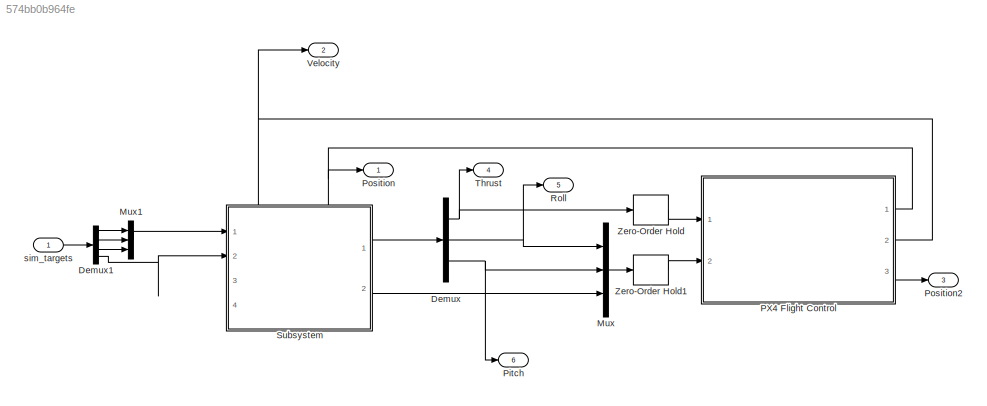
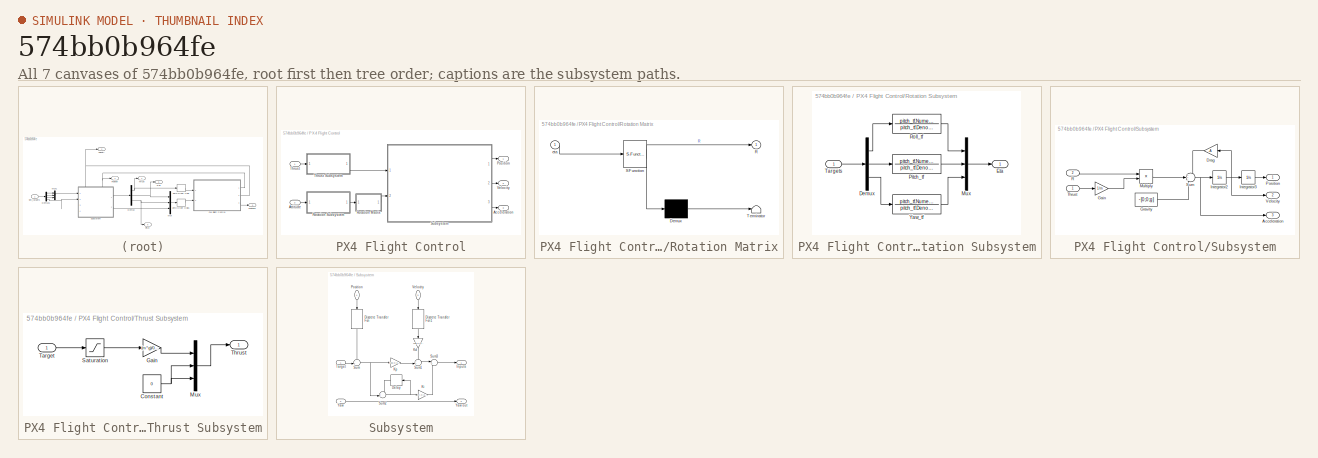
[diagram: thumbnail index - all 7 canvases of the model, root first then tree order]
MODEL slx_574bb0b964fe
KIND model
CONFIG AbsTol = auto
CONFIG EnableMultiTasking = off
CONFIG FixedStep = step_size
CONFIG MaxStep = auto
CONFIG MinStep = auto
CONFIG RelTol = 1e-3
CONFIG SampleTimeConstraint = Unconstrained
CONFIG Solver = FixedStepAuto
CONFIG SolverName = FixedStepAuto
CONFIG StartTime = 0.0
CONFIG StopTime = 10.0
BLOCK [Demux] Demux
  Outputs = 3
  Ports = [1, 3]
BLOCK [Demux] Demux1
  Ports = [1, 4]
BLOCK [Mux] Mux
  DisplayOption = bar
  Inputs = 3
  Ports = [3, 1]
BLOCK [Mux] Mux1
  DisplayOption = bar
  Inputs = 3
  Ports = [3, 1]
BLOCK [SubSystem] PX4 Flight Control
  Ports = [2, 3]
  RequestExecContextInheritance = off
BLOCK [Outport] PX4 Flight Control/Acceleration
  Port = 3
BLOCK [Inport] PX4 Flight Control/Attitude
  Port = 2
BLOCK [Outport] PX4 Flight Control/Position
BLOCK [SubSystem] PX4 Flight Control/Rotation Matrix
  ErrorFcn = Stateflow.Translate.translate
  PermitHierarchicalResolution = ExplicitOnly
  Ports = [1, 1]
  RequestExecContextInheritance = off
  SFBlockType = MATLAB Function
  TreatAsAtomicUnit = on
BLOCK [Demux] PX4 Flight Control/Rotation Matrix/ Demux 
  Outputs = 1
  Ports = [1, 1]
BLOCK [S-Function] PX4 Flight Control/Rotation Matrix/ SFunction 
  EnableBusSupport = on
  FunctionName = sf_sfun
  PortCounts = [1 2]
  Ports = [1, 2]
  SFcnIsStateOwnerBlock = off
  SFunctionDeploymentMode = off
  Tag = Stateflow S-Function 1
BLOCK [Terminator] PX4 Flight Control/Rotation Matrix/ Terminator 
BLOCK [Outport] PX4 Flight Control/Rotation Matrix/R
  VectorParamsAs1DForOutWhenUnconnected = off
BLOCK [Inport] PX4 Flight Control/Rotation Matrix/eta
BLOCK [SubSystem] PX4 Flight Control/Rotation Subsystem
  Ports = [1, 1]
  RequestExecContextInheritance = off
BLOCK [Demux] PX4 Flight Control/Rotation Subsystem/Demux
  Outputs = 3
  Ports = [1, 3]
BLOCK [Outport] PX4 Flight Control/Rotation Subsystem/Eta
BLOCK [Mux] PX4 Flight Control/Rotation Subsystem/Mux
  DisplayOption = bar
  Inputs = 3
  Ports = [3, 1]
BLOCK [TransferFcn] PX4 Flight Control/Rotation Subsystem/Pitch_tf
  Denominator = pitch_tf.Denominator{1}
  Numerator = pitch_tf.Numerator{1}
BLOCK [TransferFcn] PX4 Flight Control/Rotation Subsystem/Roll_tf
  Denominator = pitch_tf.Denominator{1}
  Numerator = pitch_tf.Numerator{1}
BLOCK [Inport] PX4 Flight Control/Rotation Subsystem/Targets
BLOCK [TransferFcn] PX4 Flight Control/Rotation Subsystem/Yaw_tf
  Denominator = pitch_tf.Denominator{1}
  Numerator = pitch_tf.Numerator{1}
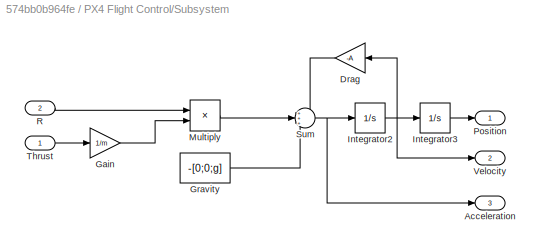
BLOCK [SubSystem] PX4 Flight Control/Subsystem
  Ports = [2, 3]
  RequestExecContextInheritance = off
BLOCK [Outport] PX4 Flight Control/Subsystem/Acceleration
  Port = 3
  VectorParamsAs1DForOutWhenUnconnected = off
BLOCK [Gain] PX4 Flight Control/Subsystem/Drag
  Gain = -A
  Multiplication = Matrix(K*u)
  NameLocation = top
BLOCK [Gain] PX4 Flight Control/Subsystem/Gain
  Gain = 1/m
  Multiplication = Matrix(K*u)
BLOCK [Constant] PX4 Flight Control/Subsystem/Gravity
  Value = -[0;0;g]
BLOCK [Integrator] PX4 Flight Control/Subsystem/Integrator2
  Ports = [1, 1]
BLOCK [Integrator] PX4 Flight Control/Subsystem/Integrator3
  Ports = [1, 1]
BLOCK [Product] PX4 Flight Control/Subsystem/Multiply
  Inputs = **
  Multiplication = Matrix(*)
  Ports = [2, 1]
BLOCK [Outport] PX4 Flight Control/Subsystem/Position
  VectorParamsAs1DForOutWhenUnconnected = off
BLOCK [Inport] PX4 Flight Control/Subsystem/R
  Port = 2
BLOCK [Sum] PX4 Flight Control/Subsystem/Sum
  Inputs = +++
  Ports = [3, 1]
BLOCK [Inport] PX4 Flight Control/Subsystem/Thrust
BLOCK [Outport] PX4 Flight Control/Subsystem/Velocity
  Port = 2
  VectorParamsAs1DForOutWhenUnconnected = off
BLOCK [Inport] PX4 Flight Control/Thrust
BLOCK [SubSystem] PX4 Flight Control/Thrust Subsystem
  Ports = [1, 1]
  RequestExecContextInheritance = off
BLOCK [Constant] PX4 Flight Control/Thrust Subsystem/Constant
  Value = 0
BLOCK [Gain] PX4 Flight Control/Thrust Subsystem/Gain
  Gain = (m*g)/0.23
BLOCK [Mux] PX4 Flight Control/Thrust Subsystem/Mux
  DisplayOption = bar
  Inputs = 3
  Ports = [3, 1]
BLOCK [Saturate] PX4 Flight Control/Thrust Subsystem/Saturation
  LowerLimit = 0
  UpperLimit = 1
BLOCK [Inport] PX4 Flight Control/Thrust Subsystem/Target
BLOCK [Outport] PX4 Flight Control/Thrust Subsystem/Thrust
BLOCK [Outport] PX4 Flight Control/Velocity
  Port = 2
BLOCK [Outport] Pitch
  Port = 6
BLOCK [Outport] Position
BLOCK [Outport] Position2
  Port = 3
BLOCK [Outport] Roll
  Port = 5
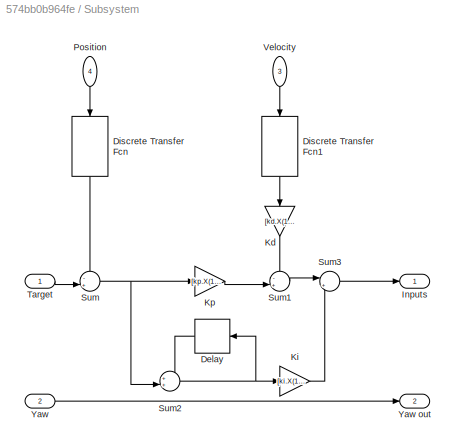
BLOCK [SubSystem] Subsystem
  PortSchema = {"entries":[{"content":{"sides":[{"content":{"connectorIds":["In1","In2"]},"type":"ConnectorPlacement.EquallySpacedRectSide","uuid":"741a1eff-fa24-40e3-8584-656dcfb9063f"},{"content":{"connectorIds":["Out1","Out2"],"side":"RIGHT"},"type":"ConnectorPlacement.EquallySpacedRectSide","uuid":"ed08c2cd-e579-42d0-ad38-ef4d944c32e6"},{"content":{"connectorIds":["In3","In4"],"side":"TOP"},"type":"Connector...<+266ch>
  Ports = [4, 2]
  RequestExecContextInheritance = off
BLOCK [Delay] Subsystem/Delay
  DelayLength = 1
  InputPortMap = u0
  NameLocation = top
  Ports = [1, 1]
  SampleTime = Ts
BLOCK [DiscreteTransferFcn] Subsystem/Discrete Transfer Fcn
  Denominator = [1]
  InputPortMap = u0
  NameLocation = left
  Ports = [1, 1]
  SampleTime = Ts
BLOCK [DiscreteTransferFcn] Subsystem/Discrete Transfer Fcn1
  Denominator = [1]
  InputPortMap = u0
  NameLocation = left
  Ports = [1, 1]
  SampleTime = Ts
BLOCK [Outport] Subsystem/Inputs
BLOCK [Gain] Subsystem/Kd
  Gain = [kd.X(1) kd.Y(1) kd.Z(1)]
  NameLocation = left
BLOCK [Gain] Subsystem/Ki
  Gain = [ki.X(1) ki.Y(1) ki.Z(1)]
  NameLocation = top
BLOCK [Gain] Subsystem/Kp
  Gain = [kp.X(1) kp.Y(1) kp.Z(1)]
  NameLocation = top
BLOCK [Inport] Subsystem/Position
  NameLocation = left
  Port = 4
BLOCK [Sum] Subsystem/Sum
  Inputs = -+|
  Ports = [2, 1]
BLOCK [Sum] Subsystem/Sum1
  Inputs = -+|
  Ports = [2, 1]
BLOCK [Sum] Subsystem/Sum2
  Inputs = ++|
  Ports = [2, 1]
BLOCK [Sum] Subsystem/Sum3
  Inputs = |++
  Ports = [2, 1]
BLOCK [Inport] Subsystem/Target
BLOCK [Inport] Subsystem/Velocity
  NameLocation = left
  Port = 3
BLOCK [Inport] Subsystem/Yaw
  Port = 2
BLOCK [Outport] Subsystem/Yaw out
  Port = 2
BLOCK [Outport] Thrust
  Port = 4
BLOCK [Outport] Velocity
  Port = 2
BLOCK [ZeroOrderHold] Zero-Order Hold
  SampleTime = Ts
BLOCK [ZeroOrderHold] Zero-Order Hold1
  SampleTime = Ts
BLOCK [Inport] sim_targets
LINE Demux1:1 -> Mux1:1
LINE Demux1:2 -> Mux1:2
LINE Demux1:3 -> Mux1:3
LINE Demux1:4 -> Subsystem:2
NET Demux:1 -> Thrust:1, Zero-Order Hold:1
NET Demux:2 -> Mux:1, Roll:1
NET Demux:3 -> Mux:2, Pitch:1
LINE Mux1:1 -> Subsystem:1
LINE Mux:1 -> Zero-Order Hold1:1
LINE PX4 Flight Control/Attitude:1 -> PX4 Flight Control/Rotation Subsystem:1
LINE PX4 Flight Control/Rotation Matrix:1 -> PX4 Flight Control/Subsystem:2
LINE PX4 Flight Control/Rotation Subsystem/Demux:1 -> PX4 Flight Control/Rotation Subsystem/Roll_tf:1
LINE PX4 Flight Control/Rotation Subsystem/Demux:2 -> PX4 Flight Control/Rotation Subsystem/Pitch_tf:1
LINE PX4 Flight Control/Rotation Subsystem/Demux:3 -> PX4 Flight Control/Rotation Subsystem/Yaw_tf:1
LINE PX4 Flight Control/Rotation Subsystem/Mux:1 -> PX4 Flight Control/Rotation Subsystem/Eta:1
LINE PX4 Flight Control/Rotation Subsystem/Pitch_tf:1 -> PX4 Flight Control/Rotation Subsystem/Mux:2
LINE PX4 Flight Control/Rotation Subsystem/Roll_tf:1 -> PX4 Flight Control/Rotation Subsystem/Mux:1
LINE PX4 Flight Control/Rotation Subsystem/Targets:1 -> PX4 Flight Control/Rotation Subsystem/Demux:1
LINE PX4 Flight Control/Rotation Subsystem/Yaw_tf:1 -> PX4 Flight Control/Rotation Subsystem/Mux:3
LINE PX4 Flight Control/Rotation Subsystem:1 -> PX4 Flight Control/Rotation Matrix:1
LINE PX4 Flight Control/Subsystem/Drag:1 -> PX4 Flight Control/Subsystem/Sum:1
LINE PX4 Flight Control/Subsystem/Gain:1 -> PX4 Flight Control/Subsystem/Multiply:2
LINE PX4 Flight Control/Subsystem/Gravity:1 -> PX4 Flight Control/Subsystem/Sum:3
NET PX4 Flight Control/Subsystem/Integrator2:1 -> PX4 Flight Control/Subsystem/Drag:1, PX4 Flight Control/Subsystem/Integrator3:1, PX4 Flight Control/Subsystem/Velocity:1
LINE PX4 Flight Control/Subsystem/Integrator3:1 -> PX4 Flight Control/Subsystem/Position:1
LINE PX4 Flight Control/Subsystem/Multiply:1 -> PX4 Flight Control/Subsystem/Sum:2
LINE PX4 Flight Control/Subsystem/R:1 -> PX4 Flight Control/Subsystem/Multiply:1
NET PX4 Flight Control/Subsystem/Sum:1 -> PX4 Flight Control/Subsystem/Acceleration:1, PX4 Flight Control/Subsystem/Integrator2:1
LINE PX4 Flight Control/Subsystem/Thrust:1 -> PX4 Flight Control/Subsystem/Gain:1
LINE PX4 Flight Control/Subsystem:1 -> PX4 Flight Control/Position:1
LINE PX4 Flight Control/Subsystem:2 -> PX4 Flight Control/Velocity:1
LINE PX4 Flight Control/Subsystem:3 -> PX4 Flight Control/Acceleration:1
NET PX4 Flight Control/Thrust Subsystem/Constant:1 -> PX4 Flight Control/Thrust Subsystem/Mux:2, PX4 Flight Control/Thrust Subsystem/Mux:3
LINE PX4 Flight Control/Thrust Subsystem/Gain:1 -> PX4 Flight Control/Thrust Subsystem/Mux:1
LINE PX4 Flight Control/Thrust Subsystem/Mux:1 -> PX4 Flight Control/Thrust Subsystem/Thrust:1
LINE PX4 Flight Control/Thrust Subsystem/Saturation:1 -> PX4 Flight Control/Thrust Subsystem/Gain:1
LINE PX4 Flight Control/Thrust Subsystem/Target:1 -> PX4 Flight Control/Thrust Subsystem/Saturation:1
LINE PX4 Flight Control/Thrust Subsystem:1 -> PX4 Flight Control/Subsystem:1
LINE PX4 Flight Control/Thrust:1 -> PX4 Flight Control/Thrust Subsystem:1
NET PX4 Flight Control:1 -> Position:1, Subsystem:4
NET PX4 Flight Control:2 -> Subsystem:3, Velocity:1
LINE PX4 Flight Control:3 -> Position2:1
LINE Subsystem/Delay:1 -> Subsystem/Sum2:1
LINE Subsystem/Discrete Transfer Fcn1:1 -> Subsystem/Kd:1
LINE Subsystem/Discrete Transfer Fcn:1 -> Subsystem/Sum:1
LINE Subsystem/Kd:1 -> Subsystem/Sum1:1
LINE Subsystem/Ki:1 -> Subsystem/Sum3:2
LINE Subsystem/Kp:1 -> Subsystem/Sum1:2
LINE Subsystem/Position:1 -> Subsystem/Discrete Transfer Fcn:1
LINE Subsystem/Sum1:1 -> Subsystem/Sum3:1
NET Subsystem/Sum2:1 -> Subsystem/Delay:1, Subsystem/Ki:1
LINE Subsystem/Sum3:1 -> Subsystem/Inputs:1
NET Subsystem/Sum:1 -> Subsystem/Kp:1, Subsystem/Sum2:2
LINE Subsystem/Target:1 -> Subsystem/Sum:2
LINE Subsystem/Velocity:1 -> Subsystem/Discrete Transfer Fcn1:1
LINE Subsystem/Yaw:1 -> Subsystem/Yaw out:1
LINE Subsystem:1 -> Demux:1
LINE Subsystem:2 -> Mux:3
LINE Zero-Order Hold1:1 -> PX4 Flight Control:2
LINE Zero-Order Hold:1 -> PX4 Flight Control:1
LINE sim_targets:1 -> Demux1:1
note: NET lines group one-source signal fan-out (src -> all destinations, sorted); 1:1 wires keep LINE
CHART PX4 Flight Control/Rotation Matrix states=1 transitions=1
  STATE_LABEL 'eML_blk_kernel()'
  STATE_LABEL 'SCRIPT:\nfunction R = fcn(eta)\neta_deg = rad2deg(eta);\nphi     = eta_deg(1);\ntheta   = eta_deg(2);\npsi     = eta_deg(3);\n\nRz = rotz(psi);\nRy = roty(theta);\nRx = rotx(phi);\n\nR = Rz*Ry*Rx;\n'
CHART  states=0 transitions=0
